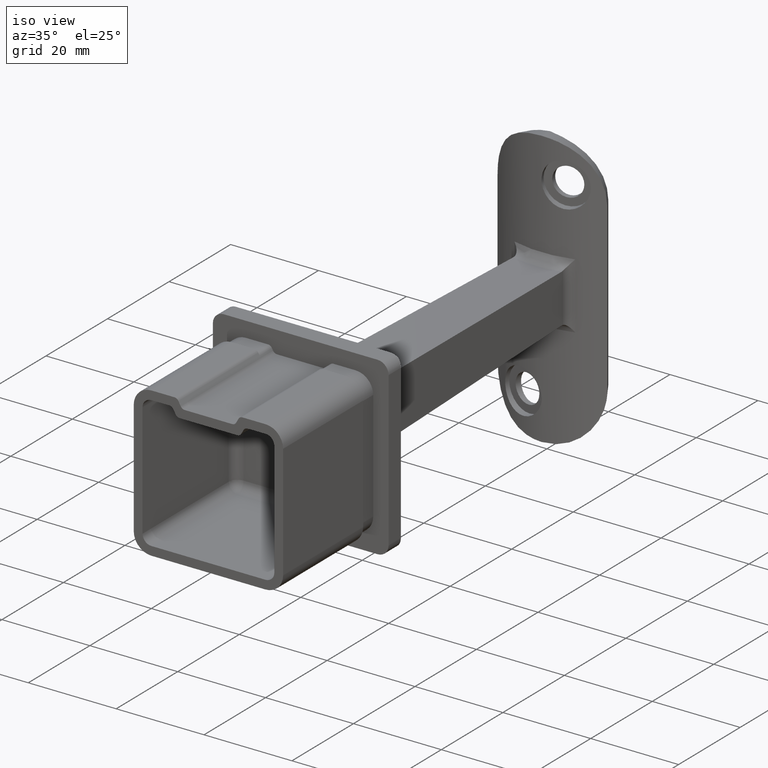
[diagram: clean part render]
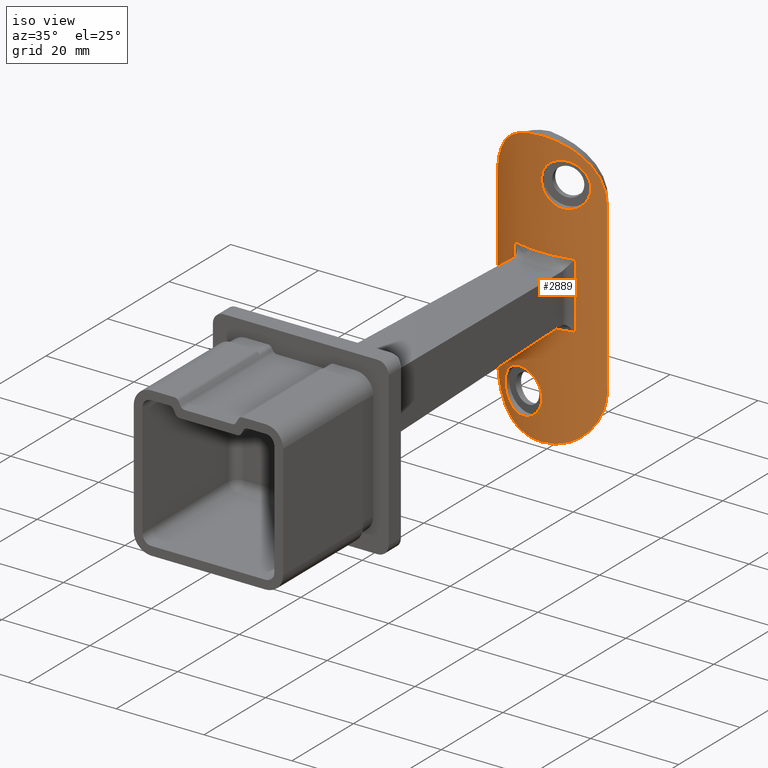
[diagram: same view with one face highlighted and labeled with its STEP entity id]
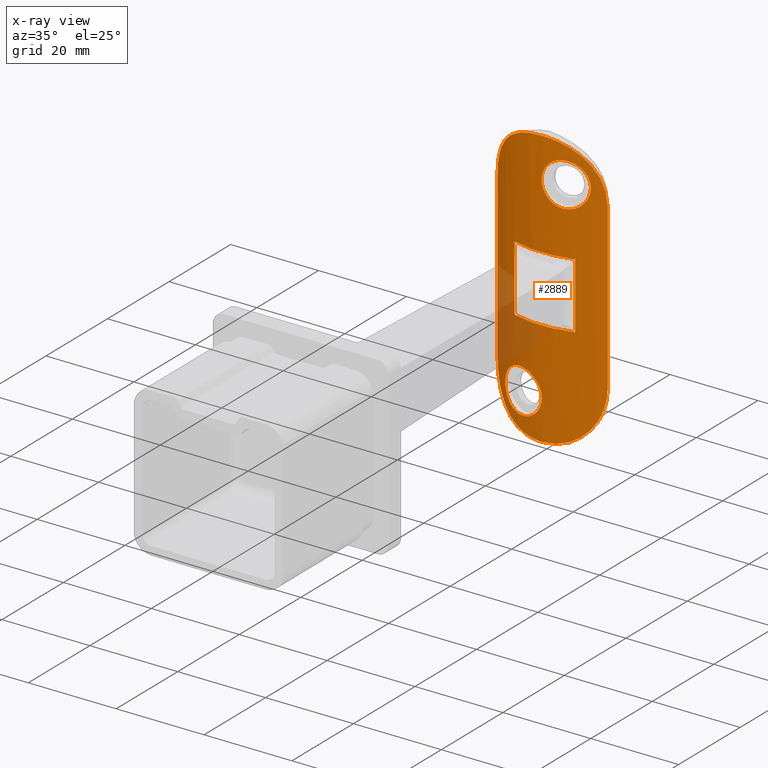
[diagram: x-ray of the same camera — body ghosted, the highlighted face saturated]
A machine part, iso view. The second image highlights one B-rep face of the part: STEP entity #2889.
The next image is the same camera in x-ray: the body ghosted, the highlighted face saturated — about 10% of this face is hidden behind the body in this view.
In plain terms, the highlighted cylindrical surface (partial cylindrical patch) has radius 23.9 mm, axis along (-0, -0, -1).
Its self-contained STEP definition (entity closure, byte-faithful):
#45 = CARTESIAN_POINT ( 'NONE',  ( 10.08867188535812964, 80.53192774363735396, 26.81347648107467307 ) ) ;
#97 = CARTESIAN_POINT ( 'NONE',  ( 12.11901948671362028, 81.60011137486631583, 22.33140305776570145 ) ) ;
#157 = CARTESIAN_POINT ( 'NONE',  ( 1.801515202842875839E-14, 78.30000000000001137, 31.50000000000000000 ) ) ;
#196 = VERTEX_POINT ( 'NONE', #13093 ) ;
#235 = EDGE_CURVE ( 'NONE', #13995, #7014, #11549, .T. ) ;
#263 = CARTESIAN_POINT ( 'NONE',  ( 12.20891205128505419, 81.65347634598812476, -21.92654828318316618 ) ) ;
#363 = CARTESIAN_POINT ( 'NONE',  ( 11.76970929267261035, 81.39827771256710776, -23.54502373047130348 ) ) ;
#422 = CARTESIAN_POINT ( 'NONE',  ( -9.127506563823764907, 80.11080787763683020, -19.98808559737458879 ) ) ;
#474 = CARTESIAN_POINT ( 'NONE',  ( -2.780473052627291164, 78.46035474060471415, -26.99400035388134000 ) ) ;
#533 = CARTESIAN_POINT ( 'NONE',  ( -9.600187830127641320, 80.31277267089632232, -23.79830294053726902 ) ) ;
#588 = CARTESIAN_POINT ( 'NONE',  ( -1.016315291976405355, 78.32089332832218531, -25.55653990918965235 ) ) ;
#644 = CARTESIAN_POINT ( 'NONE',  ( -0.6443453516928773217, 78.30796259675987869, -25.00945724881789189 ) ) ;
#693 = CARTESIAN_POINT ( 'NONE',  ( -3.336273381304646346, 78.53044230512335844, 31.14985781734947068 ) ) ;
#698 = CARTESIAN_POINT ( 'NONE',  ( 7.115695093291108719, 79.38183463164430975, 26.99400035388134711 ) ) ;
#751 = CARTESIAN_POINT ( 'NONE',  ( -1.689374649983637289, 78.34534707229671824, 31.43731789905272223 ) ) ;
#755 = CARTESIAN_POINT ( 'NONE',  ( 0.7350212690320919728, 78.31112669137017690, 25.14250287084909274 ) ) ;
#774 = VERTEX_POINT ( 'NONE', #10666 ) ;
#814 = CARTESIAN_POINT ( 'NONE',  ( 0.2307190772066439743, 78.30077190673048904, 20.88490751150437674 ) ) ;
#864 = CARTESIAN_POINT ( 'NONE',  ( 4.320354183384964131, 78.69155504846200699, 27.46673691025675268 ) ) ;
#904 = ORIENTED_EDGE ( 'NONE', *, *, #5627, .T. ) ;
#910 = CARTESIAN_POINT ( 'NONE',  ( -12.42679954048867685, 81.78399343299371083, 20.68969287840722515 ) ) ;
#1073 = CARTESIAN_POINT ( 'NONE',  ( 9.273386846155728946, 80.17205029477867129, 24.72218966816179275 ) ) ;
#1106 = B_SPLINE_CURVE_WITH_KNOTS ( 'NONE', 3,
 ( #2479, #12498, #16256, #13632, #2310, #9931, #2367, #13791, #6202, #15331, #8830, #3898, #12761, #5012, #10096, #14061, #5175, #7566, #7716, #2530, #11452, #12652, #10144, #6528 ),
 .UNSPECIFIED., .F., .F.,
 ( 4, 2, 2, 2, 2, 2, 2, 2, 2, 2, 2, 4 ),
 ( 0.000000000000000000, 0.002519114623883647684, 0.003778671935825471308, 0.005038229247767295367, 0.007557343871650942617, 0.008816901183592771446, 0.01007645849553460114, 0.01259557311941824145, 0.01511468774330187829, 0.01637424505524370452, 0.01763380236718552554, 0.02015291699106916759 ),
 .UNSPECIFIED. ) ;
#1130 = CARTESIAN_POINT ( 'NONE',  ( 8.588082210761074364, 79.89509303026953546, 25.80842519166886007 ) ) ;
#1295 = CARTESIAN_POINT ( 'NONE',  ( -0.6431187095368751105, 78.30794422712858704, -19.99299302735895623 ) ) ;
#1359 = B_SPLINE_CURVE_WITH_KNOTS ( 'NONE', 3,
 ( #16053, #7123, #751, #3374, #693, #2005, #3261, #14649, #12139, #14701, #9510, #4541, #5825, #5885, #15892, #4639, #13537, #8370, #5943, #10811, #8482, #9730, #3210, #910, #2173, #11187 ),
 .UNSPECIFIED., .F., .F.,
 ( 4, 2, 2, 2, 2, 2, 2, 2, 2, 2, 2, 2, 4 ),
 ( 3.081487911019577365E-33, 0.002520402078899247958, 0.003780603118348871937, 0.005040804157798496783, 0.007561206236697756884, 0.008821407276147389537, 0.01008160831559702306, 0.01134180935504665484, 0.01260201039449629010, 0.01512241247339555540, 0.01638261351284519066, 0.01764281455229482418, 0.02016321663119407734 ),
 .UNSPECIFIED. ) ;
#1395 = VECTOR ( 'NONE', #6594, 1000.000000000000000 ) ;
#1672 = CARTESIAN_POINT ( 'NONE',  ( 7.811028814570932788, 79.60992761471548818, -29.12473873559212834 ) ) ;
#1682 = CARTESIAN_POINT ( 'NONE',  ( -9.045004794819881511, 80.07746821714614782, -25.14250287084909274 ) ) ;
#1741 = CARTESIAN_POINT ( 'NONE',  ( -2.084192267671500787, 78.39065452399388789, -26.56809705087443874 ) ) ;
#1800 = CARTESIAN_POINT ( 'NONE',  ( -9.719051252733574842, 80.36529439368780459, -21.83926953236254320 ) ) ;
#1851 = CARTESIAN_POINT ( 'NONE',  ( 0.03160559237217525769, 78.30002089778047036, -22.50000000000000355 ) ) ;
#1899 = CARTESIAN_POINT ( 'NONE',  ( 0.6485267091332547196, 78.30867131525549496, 25.00051207834199829 ) ) ;
#1912 = CARTESIAN_POINT ( 'NONE',  ( -0.4867718186567255856, 78.30461448954385162, -20.27980288879009052 ) ) ;
#1917 = VERTEX_POINT ( 'NONE', #14085 ) ;
#1958 = CARTESIAN_POINT ( 'NONE',  ( 5.288698808989150457, 78.89016029310374734, 27.50022033124597698 ) ) ;
#2005 = CARTESIAN_POINT ( 'NONE',  ( -4.147560489722063259, 78.65904794767226349, 30.93923599940400493 ) ) ;
#2009 = CARTESIAN_POINT ( 'NONE',  ( 0.1337264217455732263, 78.30028361231644851, 21.19654959334430799 ) ) ;
#2068 = CARTESIAN_POINT ( 'NONE',  ( 9.130256385414808662, 80.11194102993324861, 19.99299302735895978 ) ) ;
#2121 = CARTESIAN_POINT ( 'NONE',  ( 0.4914317832794057317, 78.30492377042212127, 24.71141185185758005 ) ) ;
#2173 = CARTESIAN_POINT ( 'NONE',  ( -12.49999999999999822, 81.82943299758201761, 19.85176367316413248 ) ) ;
#2257 = CARTESIAN_POINT ( 'NONE',  ( -0.001748189622244579250, 78.29991121641461405, -21.84311018396013182 ) ) ;
#2302 = CARTESIAN_POINT ( 'NONE',  ( -2.379463125981270633, 77.94725717978042212, -7.542673587515561273 ) ) ;
#2310 = CARTESIAN_POINT ( 'NONE',  ( -12.11901948671362561, 81.60011137486631583, -22.33140305776571566 ) ) ;
#2316 = EDGE_CURVE ( 'NONE', #196, #7469, #1359, .T. ) ;
#2367 = CARTESIAN_POINT ( 'NONE',  ( -11.77122596088925199, 81.39913586908090792, -23.54059027737377363 ) ) ;
#2373 = B_SPLINE_CURVE_WITH_KNOTS ( 'NONE', 3,
 ( #16295, #12325, #3883, #6404, #97, #2568, #12747, #7653, #3773, #13939, #45, #2730, #8923, #8868, #6451, #15315, #5216, #7755, #11540, #11493, #12693, #7701, #7604, #157 ),
 .UNSPECIFIED., .F., .F.,
 ( 4, 2, 2, 2, 2, 2, 2, 2, 2, 2, 2, 4 ),
 ( 0.000000000000000000, 0.002519114623883630770, 0.003778671935825445721, 0.005038229247767261540, 0.007557343871650899249, 0.008816901183592722874, 0.01007645849553454910, 0.01259557311941819635, 0.01511468774330184707, 0.01637424505524366983, 0.01763380236718549432, 0.02015291699106914330 ),
 .UNSPECIFIED. ) ;
#2479 = CARTESIAN_POINT ( 'NONE',  ( -12.49999999999999112, 81.82943299758201761, -19.00000000000000355 ) ) ;
#2530 = CARTESIAN_POINT ( 'NONE',  ( -3.346186589489720919, 78.53181852281925046, -31.14766439404766274 ) ) ;
#2568 = CARTESIAN_POINT ( 'NONE',  ( 11.89999009249916107, 81.47281301078993465, 23.14010211780841786 ) ) ;
#2710 = DIRECTION ( 'NONE',  ( 0.000000000000000000, 0.000000000000000000, 1.000000000000000000 ) ) ;
#2730 = CARTESIAN_POINT ( 'NONE',  ( 9.584007642454674070, 80.30403111925078008, 27.45448678469192316 ) ) ;
#2731 = CARTESIAN_POINT ( 'NONE',  ( 10.97345080794629268, 80.96254934992319363, -25.44217904814953357 ) ) ;
#2783 = CARTESIAN_POINT ( 'NONE',  ( 8.744562075133805124, 79.95508053998274534, -28.33922657631659092 ) ) ;
#2792 = VERTEX_POINT ( 'NONE', #11215 ) ;
#2889 = ADVANCED_FACE ( 'NONE', ( #4724, #11484, #13478, #14060 ), #15066, .T. ) ;
#2946 = CARTESIAN_POINT ( 'NONE',  ( -6.540207807851578181, 79.21025527644513886, -27.24256000492122354 ) ) ;
#2998 = CARTESIAN_POINT ( 'NONE',  ( -4.646211916713988366, 78.75368460755541378, -17.50019634967356197 ) ) ;
#3051 = CARTESIAN_POINT ( 'NONE',  ( -1.226619491483846192, 78.33036582579794072, -25.80842519166886362 ) ) ;
#3110 = CARTESIAN_POINT ( 'NONE',  ( -5.286121852444319202, 78.88961805507872782, -17.49980543568915436 ) ) ;
#3161 = CARTESIAN_POINT ( 'NONE',  ( 2.485768645124741383, 78.42806023462591725, 26.83598321995807368 ) ) ;
#3210 = CARTESIAN_POINT ( 'NONE',  ( -12.20891205128505241, 81.65347634598812476, 21.92654828318317684 ) ) ;
#3214 = CARTESIAN_POINT ( 'NONE',  ( 8.154535004959807765, 79.73296610532284490, 18.73416644500701267 ) ) ;
#3261 = CARTESIAN_POINT ( 'NONE',  ( -4.548975921183288307, 78.73355696909696633, 30.81386667980315153 ) ) ;
#3265 = CARTESIAN_POINT ( 'NONE',  ( 1.691135978310251753, 78.35874976783708235, 18.73170185551622779 ) ) ;
#3322 = CARTESIAN_POINT ( 'NONE',  ( 0.0005771714339043895444, 78.29990949396909627, 23.15017998427636670 ) ) ;
#3350 = CARTESIAN_POINT ( 'NONE',  ( 0.03160559237217526463, 78.30002089778045615, -22.16869266728089372 ) ) ;
#3374 = CARTESIAN_POINT ( 'NONE',  ( -2.927063304914161002, 78.47629005274845326, 31.23528233315706970 ) ) ;
#3378 = CARTESIAN_POINT ( 'NONE',  ( 2.352842707652277543, 78.41570574819786543, 18.25290835144793533 ) ) ;
#3431 = CARTESIAN_POINT ( 'NONE',  ( 8.784057468769093546, 79.97197789736037521, 25.55653990918964524 ) ) ;
#3487 = CARTESIAN_POINT ( 'NONE',  ( 8.261496318098474845, 79.77298088615374638, 26.15278266463082701 ) ) ;
#3611 = CARTESIAN_POINT ( 'NONE',  ( 6.619561220086336491E-15, 78.30000000000001137, -31.50000000000000000 ) ) ;
#3709 = VERTEX_POINT ( 'NONE', #14553 ) ;
#3757 = CARTESIAN_POINT ( 'NONE',  ( 12.49999999999999645, 81.82943299758201761, 31.50000000000000000 ) ) ;
#3773 = CARTESIAN_POINT ( 'NONE',  ( 10.97563549100983415, 80.96374432536038057, 25.43748840281081769 ) ) ;
#3876 = CARTESIAN_POINT ( 'NONE',  ( 0.000000000000000000, 102.2000000000000028, 31.50000000000000000 ) ) ;
#3880 = LINE ( 'NONE', #9007, #13220 ) ;
#3883 = CARTESIAN_POINT ( 'NONE',  ( 12.42680511908452168, 81.78400078732633460, 20.68884113789401269 ) ) ;
#3898 = CARTESIAN_POINT ( 'NONE',  ( -9.584007642454674070, 80.30403111925078008, -27.45448678469193737 ) ) ;
#4213 = CARTESIAN_POINT ( 'NONE',  ( 11.33339039638915580, 81.15540235706410499, -24.70683279222540918 ) ) ;
#4219 = CARTESIAN_POINT ( 'NONE',  ( -12.49999999999999112, 81.82943299758201761, -19.00000000000000355 ) ) ;
#4225 = CARTESIAN_POINT ( 'NONE',  ( -3.381346327244114658, 78.53846403012798305, -27.24427438281317748 ) ) ;
#4274 = ORIENTED_EDGE ( 'NONE', *, *, #10358, .T. ) ;
#4285 = CARTESIAN_POINT ( 'NONE',  ( -6.235061782998410074, 79.12541552115021659, -27.33868766164697561 ) ) ;
#4339 = CARTESIAN_POINT ( 'NONE',  ( -0.4879138866757205539, 78.30464036986674614, -24.72218966816181407 ) ) ;
#4390 = CARTESIAN_POINT ( 'NONE',  ( -9.335446488831486533, 80.19855739574065012, -24.56385518209674856 ) ) ;
#4432 = CARTESIAN_POINT ( 'NONE',  ( 0.4863052359995659324, 78.30460626053323381, 20.28080602554793188 ) ) ;
#4441 = CARTESIAN_POINT ( 'NONE',  ( -9.749995407873269571, 80.37919365455736909, -22.82473411109441130 ) ) ;
#4467 = EDGE_LOOP ( 'NONE', ( #10384 ) ) ;
#4493 = CARTESIAN_POINT ( 'NONE',  ( 6.234683881911593062, 79.12526997235599424, 17.66099280225438051 ) ) ;
#4541 = CARTESIAN_POINT ( 'NONE',  ( -8.444779438827159979, 79.83911357427858491, 28.61155486257025160 ) ) ;
#4545 = CARTESIAN_POINT ( 'NONE',  ( 8.788716178499617726, 79.97383526871233528, 19.45019540014639503 ) ) ;
#4593 = CARTESIAN_POINT ( 'NONE',  ( 2.930288528409847437, 78.47982823362046645, 17.94359031922546421 ) ) ;
#4626 = EDGE_CURVE ( 'NONE', #774, #774, #5285, .T. ) ;
#4639 = CARTESIAN_POINT ( 'NONE',  ( -10.08241091771330034, 80.52902381056036063, 26.82195185610113697 ) ) ;
#4643 = CARTESIAN_POINT ( 'NONE',  ( 6.535000132432347897, 79.20879383965632314, 27.24427438281317748 ) ) ;
#4724 = FACE_BOUND ( 'NONE', #12589, .T. ) ;
#4741 = CARTESIAN_POINT ( 'NONE',  ( -1.688627533222234689, 78.35859504505381778, -18.73416644500700912 ) ) ;
#4772 = EDGE_CURVE ( 'NONE', #7469, #15385, #15673, .T. ) ;
#4895 = CARTESIAN_POINT ( 'NONE',  ( 2.379463125981258642, 77.94725717978042212, 7.542673587515561273 ) ) ;
#4923 = DIRECTION ( 'NONE',  ( -0.000000000000000000, -0.000000000000000000, -1.000000000000000000 ) ) ;
#5012 = CARTESIAN_POINT ( 'NONE',  ( -8.467533028471118328, 79.84190151860740059, -28.62121926088211410 ) ) ;
#5045 = ORIENTED_EDGE ( 'NONE', *, *, #9206, .T. ) ;
#5175 = CARTESIAN_POINT ( 'NONE',  ( -5.717659237306463638, 78.98052635819693990, -30.38166908416159018 ) ) ;
#5216 = CARTESIAN_POINT ( 'NONE',  ( 5.717659237306474296, 78.98052635819691147, 30.38166908416157241 ) ) ;
#5285 = B_SPLINE_CURVE_WITH_KNOTS ( 'NONE', 3,
 ( #7330, #3350, #2257, #13786, #11607, #1912, #1295, #13356, #13649, #4741, #14389, #14587, #15660, #6743, #15838, #15603, #2998, #3110, #8041, #12047, #13217, #13105, #11931, #8147, #5615, #6850, #13160, #7983, #10708, #422, #5503, #5562, #11883, #1800, #8211, #4441, #14375, #533, #9360, #4390, #14428, #9254, #1682, #15716, #5673, #13321, #11980, #9305, #10546, #2946, #4285, #6795, #11829, #10767, #14481, #5731, #4225, #474, #8103, #1741, #10597, #10651, #6969, #3051, #588, #644, #4339, #6912, #13270, #15777, #9416, #1851 ),
 .UNSPECIFIED., .T., .F.,
 ( 4, 2, 2, 2, 2, 2, 2, 2, 2, 2, 2, 2, 2, 2, 2, 2, 2, 2, 2, 2, 2, 2, 2, 2, 2, 2, 2, 2, 2, 2, 2, 2, 2, 2, 2, 4 ),
 ( 0.000000000000000000, 0.0009795963889854752363, 0.001959192777970950473, 0.002938789166956425492, 0.003918385555941900945, 0.004897981944927376832, 0.005877578333912850984, 0.006857174722898326871, 0.007836771111883800156, 0.008816367500869273441, 0.009795963889854748460, 0.01028576208434749117, 0.01077556027884023389, 0.01175515666782571064, 0.01273475305681118566, 0.01371434944579666415, 0.01469394583478214091, 0.01567354222376761766, 0.01665313861275309615, 0.01763273500173857464, 0.01812253319623130868, 0.01861233139072404272, 0.01959192777970951080, 0.02057152416869497541, 0.02155112055768044002, 0.02253071694666590463, 0.02351031333565136577, 0.02448990972463683038, 0.02546950611362229500, 0.02644910250260775961, 0.02693890069710049712, 0.02742869889159323116, 0.02840829528057869924, 0.02938789166956416732, 0.03036748805854963540, 0.03134708444753510348 ),
 .UNSPECIFIED. ) ;
#5330 = CARTESIAN_POINT ( 'NONE',  ( 12.49999999999999645, 81.82943299758201761, 19.00000000000000000 ) ) ;
#5375 = CARTESIAN_POINT ( 'NONE',  ( 6.444307657597536654, 79.17391957231579624, -30.02414997491111848 ) ) ;
#5431 = CARTESIAN_POINT ( 'NONE',  ( 4.548975921183309623, 78.73355696909698054, -30.81386667980315863 ) ) ;
#5503 = CARTESIAN_POINT ( 'NONE',  ( -9.274870295189666436, 80.17267343152791170, -20.28080602554793543 ) ) ;
#5562 = CARTESIAN_POINT ( 'NONE',  ( -9.509919441785346095, 80.27312683127250637, -20.88490751150436964 ) ) ;
#5615 = CARTESIAN_POINT ( 'NONE',  ( -7.524515233781471579, 79.51497867843514200, -18.25290835144793178 ) ) ;
#5626 = CARTESIAN_POINT ( 'NONE',  ( 12.49999999999999645, 81.82943299758201761, -19.00000000000000355 ) ) ;
#5627 = EDGE_CURVE ( 'NONE', #1917, #2792, #14601, .T. ) ;
#5673 = CARTESIAN_POINT ( 'NONE',  ( -8.593721063470061594, 79.89726100378419460, -25.80172898050414076 ) ) ;
#5723 = CARTESIAN_POINT ( 'NONE',  ( 1.011835418221000538, 78.32071429097561577, 25.55057141205664806 ) ) ;
#5731 = CARTESIAN_POINT ( 'NONE',  ( -3.697407897515077035, 78.58555307202416884, -27.34093672677460773 ) ) ;
#5776 = CARTESIAN_POINT ( 'NONE',  ( 7.916021302662435311, 79.64734555656551152, 18.52751742202610075 ) ) ;
#5825 = CARTESIAN_POINT ( 'NONE',  ( -8.744562075133796242, 79.95508053998274534, 28.33922657631659447 ) ) ;
#5829 = CARTESIAN_POINT ( 'NONE',  ( 9.509927491792565135, 80.27312893736085186, 20.88482742204008957 ) ) ;
#5885 = CARTESIAN_POINT ( 'NONE',  ( -9.311737534332745980, 80.18647343653857718, 27.76352351624347747 ) ) ;
#5890 = CARTESIAN_POINT ( 'NONE',  ( 2.492647277861828048, 78.42989800527564626, 18.16903446992373361 ) ) ;
#5943 = CARTESIAN_POINT ( 'NONE',  ( -11.33339039638915224, 81.15540235706409078, 24.70683279222541984 ) ) ;
#5945 = CARTESIAN_POINT ( 'NONE',  ( 1.946318463445786406, 78.37782688561142663, 18.52399631351668319 ) ) ;
#6136 = CARTESIAN_POINT ( 'NONE',  ( 6.933718302737430506, 79.32788705654232331, -7.513945775769857782 ) ) ;
#6202 = CARTESIAN_POINT ( 'NONE',  ( -10.97563549100983415, 80.96374432536038057, -25.43748840281083901 ) ) ;
#6371 = VERTEX_POINT ( 'NONE', #9670 ) ;
#6404 = CARTESIAN_POINT ( 'NONE',  ( 12.20953536127334083, 81.65384771808318476, 21.92341828278459204 ) ) ;
#6451 = CARTESIAN_POINT ( 'NONE',  ( 7.838716696203956502, 79.61034453836462887, 29.13305149999032295 ) ) ;
#6515 = CARTESIAN_POINT ( 'NONE',  ( 1.689374649983659937, 78.34534707229676087, -31.43731789905272578 ) ) ;
#6528 = CARTESIAN_POINT ( 'NONE',  ( 6.619561220086336491E-15, 78.30000000000001137, -31.50000000000000000 ) ) ;
#6569 = CARTESIAN_POINT ( 'NONE',  ( 12.49999999999999112, 81.82943299758201761, -19.85176367316412893 ) ) ;
#6594 = DIRECTION ( 'NONE',  ( -0.000000000000000000, -0.000000000000000000, -1.000000000000000000 ) ) ;
#6738 = CARTESIAN_POINT ( 'NONE',  ( -12.49999999999999112, 81.82943299758201761, 19.00000000000000000 ) ) ;
#6743 = CARTESIAN_POINT ( 'NONE',  ( -3.376417676101221232, 78.53777773068078716, -17.75750984274124633 ) ) ;
#6795 = CARTESIAN_POINT ( 'NONE',  ( -5.614906043881918940, 78.96672054083275327, -27.46673691025675623 ) ) ;
#6850 = CARTESIAN_POINT ( 'NONE',  ( -7.911300331909830952, 79.64572292199615333, -18.52399631351667963 ) ) ;
#6912 = CARTESIAN_POINT ( 'NONE',  ( -0.2328208462703216519, 78.30079360590075055, -24.12085505512530759 ) ) ;
#6952 = VECTOR ( 'NONE', #12680, 1000.000000000000000 ) ;
#6969 = CARTESIAN_POINT ( 'NONE',  ( -1.574638033832356676, 78.35164528087545932, -26.15278266463082346 ) ) ;
#7014 = VERTEX_POINT ( 'NONE', #5626 ) ;
#7017 = CARTESIAN_POINT ( 'NONE',  ( 5.291949823460056379, 78.89094043675331136, 17.50019634967356197 ) ) ;
#7074 = CARTESIAN_POINT ( 'NONE',  ( 2.780974876316808952, 78.46190365617488283, 18.01451377190371161 ) ) ;
#7123 = CARTESIAN_POINT ( 'NONE',  ( -0.8508854924574658085, 78.29999999999999716, 31.50000000000000000 ) ) ;
#7126 = CARTESIAN_POINT ( 'NONE',  ( 1.222313477964460438, 78.33012142277783596, 19.19608057380302313 ) ) ;
#7176 = CARTESIAN_POINT ( 'NONE',  ( 1.685379200757141982, 78.35836193967135443, 26.26306796244831077 ) ) ;
#7226 = CARTESIAN_POINT ( 'NONE',  ( 7.390541836389743047, 79.46973275602969977, 26.84066717814905090 ) ) ;
#7280 = CARTESIAN_POINT ( 'NONE',  ( 9.719439629364853062, 80.36546677573242903, 23.15821926706456679 ) ) ;
#7330 = CARTESIAN_POINT ( 'NONE',  ( 0.03160559237217525769, 78.30002089778047036, -22.50000000000000355 ) ) ;
#7420 = ORIENTED_EDGE ( 'NONE', *, *, #15161, .T. ) ;
#7436 = VERTEX_POINT ( 'NONE', #5330 ) ;
#7452 = EDGE_LOOP ( 'NONE', ( #7572 ) ) ;
#7469 = VERTEX_POINT ( 'NONE', #6738 ) ;
#7510 = CARTESIAN_POINT ( 'NONE',  ( -6.933718302737435835, 79.32788705654232331, -7.513945775769857782 ) ) ;
#7558 = CARTESIAN_POINT ( 'NONE',  ( -2.379463125981263971, 77.94725717978042212, 7.542673587515561273 ) ) ;
#7566 = CARTESIAN_POINT ( 'NONE',  ( -4.556911832542870577, 78.73511239341820556, -30.81120442593325492 ) ) ;
#7572 = ORIENTED_EDGE ( 'NONE', *, *, #12385, .T. ) ;
#7596 = DIRECTION ( 'NONE',  ( -1.000000000000000000, 0.000000000000000000, 0.000000000000000000 ) ) ;
#7604 = CARTESIAN_POINT ( 'NONE',  ( 0.8512134620258889894, 78.29999999999999716, 31.50000000000000000 ) ) ;
#7653 = CARTESIAN_POINT ( 'NONE',  ( 11.33490692902557484, 81.15621892882822408, 24.70357838193986311 ) ) ;
#7687 = ORIENTED_EDGE ( 'NONE', *, *, #11578, .F. ) ;
#7696 = DIRECTION ( 'NONE',  ( -0.000000000000000000, -0.000000000000000000, -1.000000000000000000 ) ) ;
#7701 = CARTESIAN_POINT ( 'NONE',  ( 1.691493122413926464, 78.34538282708085433, 31.43729596739237309 ) ) ;
#7716 = CARTESIAN_POINT ( 'NONE',  ( -4.160047560328647975, 78.66122808164696778, -30.93560338018276923 ) ) ;
#7755 = CARTESIAN_POINT ( 'NONE',  ( 4.556911832542887453, 78.73511239341820556, 30.81120442593324071 ) ) ;
#7757 = CARTESIAN_POINT ( 'NONE',  ( 12.11808895019411736, 81.59956064183808166, -22.33546752015569936 ) ) ;
#7895 = B_SPLINE_CURVE_WITH_KNOTS ( 'NONE', 3,
 ( #10814, #13366, #9627, #12144, #5829, #8322, #2068, #4545, #9513, #3214, #5776, #16109, #14704, #13432, #4493, #14651, #7017, #13542, #16057, #8375, #9567, #4593, #7074, #5890, #3378, #5945, #3265, #7126, #14753, #12251, #4432, #814, #2009, #8265, #14813, #10920, #3322, #12196, #15950, #13486, #2121, #1899, #755, #5723, #10872, #7176, #10759, #3161, #14592, #8433, #13315, #864, #15894, #1958, #9681, #10977, #4643, #698, #7226, #8485, #9465, #12039, #3487, #1130, #3431, #12306, #1073, #9904, #16224, #7280, #11095, #16160 ),
 .UNSPECIFIED., .T., .F.,
 ( 4, 2, 2, 2, 2, 2, 2, 2, 2, 2, 2, 2, 2, 2, 2, 2, 2, 2, 2, 2, 2, 2, 2, 2, 2, 2, 2, 2, 2, 2, 2, 2, 2, 2, 2, 4 ),
 ( 0.000000000000000000, 0.0009795963889854750195, 0.001959192777970950039, 0.002938789166956425059, 0.003918385555941900078, 0.004897981944927375098, 0.005877578333912848382, 0.006857174722898321667, 0.007836771111883794952, 0.008816367500869268237, 0.009795963889854741521, 0.01028576208434747556, 0.01077556027884020960, 0.01175515666782567074, 0.01273475305681113015, 0.01371434944579659303, 0.01469394583478205243, 0.01567354222376751358, 0.01665313861275297819, 0.01763273500173843586, 0.01812253319623117337, 0.01861233139072390741, 0.01959192777970937896, 0.02057152416869485051, 0.02155112055768031859, 0.02253071694666579361, 0.02351031333565126516, 0.02448990972463673671, 0.02546950611362220479, 0.02644910250260767981, 0.02693890069710042079, 0.02742869889159316177, 0.02840829528057865067, 0.02938789166956413609, 0.03036748805854962846, 0.03134708444753511736 ),
 .UNSPECIFIED. ) ;
#7920 = CARTESIAN_POINT ( 'NONE',  ( 10.08241091771331455, 80.52902381056037484, -26.82195185610113697 ) ) ;
#7983 = CARTESIAN_POINT ( 'NONE',  ( -8.592115357516201257, 79.89662117048456480, -19.19608057380301958 ) ) ;
#8041 = CARTESIAN_POINT ( 'NONE',  ( -5.609776196574823182, 78.96546502709679771, -17.53248664024603443 ) ) ;
#8103 = CARTESIAN_POINT ( 'NONE',  ( -2.493636670876509864, 78.42886343122407311, -26.84066717814905445 ) ) ;
#8147 = CARTESIAN_POINT ( 'NONE',  ( -7.391024892707349636, 79.47108030884858465, -18.16903446992373361 ) ) ;
#8177 =( BOUNDED_CURVE ( )  B_SPLINE_CURVE ( 3, ( #6136, #10036, #2302, #7510 ),
 .UNSPECIFIED., .F., .F. ) 
 B_SPLINE_CURVE_WITH_KNOTS ( ( 4, 4 ),
 ( 5.988839623664865996, 6.577530990694307356 ),
 .UNSPECIFIED. ) 
 CURVE ( )  GEOMETRIC_REPRESENTATION_ITEM ( )  RATIONAL_B_SPLINE_CURVE ( ( 1.000000000000000000, 0.9713281155776197773, 0.9713281155776197773, 1.000000000000000000 ) ) 
 REPRESENTATION_ITEM ( '' )  );
#8211 = CARTESIAN_POINT ( 'NONE',  ( -9.749744633654028547, 80.37908160508828814, -22.17115634621318776 ) ) ;
#8265 = CARTESIAN_POINT ( 'NONE',  ( 0.002179736329043761248, 78.29990959397153460, 21.83926953236254320 ) ) ;
#8322 = CARTESIAN_POINT ( 'NONE',  ( 9.274440703682437004, 80.17249117283947157, 20.27980288879008341 ) ) ;
#8370 = CARTESIAN_POINT ( 'NONE',  ( -10.97345080794628203, 80.96254934992317942, 25.44217904814954068 ) ) ;
#8375 = CARTESIAN_POINT ( 'NONE',  ( 3.692145320226120297, 78.58472385685375627, 17.66045373648260508 ) ) ;
#8433 = CARTESIAN_POINT ( 'NONE',  ( 3.375994459126472336, 78.53768096664975928, 27.24256000492123064 ) ) ;
#8482 = CARTESIAN_POINT ( 'NONE',  ( -11.89811867380433874, 81.47173539395565456, 23.14637495243619369 ) ) ;
#8485 = CARTESIAN_POINT ( 'NONE',  ( 7.780128873757247376, 79.60136322447385737, 26.56809705087442808 ) ) ;
#8830 = CARTESIAN_POINT ( 'NONE',  ( -10.08867188535812964, 80.53192774363735396, -26.81347648107468373 ) ) ;
#8868 = CARTESIAN_POINT ( 'NONE',  ( 8.467533028471128986, 79.84190151860741480, 28.62121926088209634 ) ) ;
#8923 = CARTESIAN_POINT ( 'NONE',  ( 9.316456717463761805, 80.18847903813551170, 27.75832848789907459 ) ) ;
#8929 = EDGE_CURVE ( 'NONE', #14623, #1917, #3880, .T. ) ;
#9007 = CARTESIAN_POINT ( 'NONE',  ( -6.933718302737435835, 79.32788705654232331, 31.50000000000000000 ) ) ;
#9154 = CARTESIAN_POINT ( 'NONE',  ( 6.933718302737433170, 79.32788705654232331, 31.50000000000000000 ) ) ;
#9185 = CARTESIAN_POINT ( 'NONE',  ( 12.49999999999999645, 81.82943299758201761, -19.00000000000000355 ) ) ;
#9206 = EDGE_CURVE ( 'NONE', #15385, #13995, #1106, .T. ) ;
#9254 = CARTESIAN_POINT ( 'NONE',  ( -9.125020198564643081, 80.11040562638730478, -25.00051207834200184 ) ) ;
#9305 = CARTESIAN_POINT ( 'NONE',  ( -7.398056325063953942, 79.47219921380775531, -26.83598321995807368 ) ) ;
#9360 = CARTESIAN_POINT ( 'NONE',  ( -9.510735381743552708, 80.27348491538468522, -24.11228499716552776 ) ) ;
#9416 = CARTESIAN_POINT ( 'NONE',  ( 0.03160559237217525075, 78.30002089778048457, -22.83130733271910628 ) ) ;
#9465 = CARTESIAN_POINT ( 'NONE',  ( 7.906659837075930675, 79.64537707930486476, 26.46959917486580949 ) ) ;
#9510 = CARTESIAN_POINT ( 'NONE',  ( -7.811028814570921242, 79.60992761471547396, 29.12473873559212834 ) ) ;
#9513 = CARTESIAN_POINT ( 'NONE',  ( 8.590058145852616178, 79.89585342985395755, 19.19392981547819232 ) ) ;
#9567 = CARTESIAN_POINT ( 'NONE',  ( 3.382830474563728096, 78.53865988737159398, 17.75512468499805152 ) ) ;
#9627 = CARTESIAN_POINT ( 'NONE',  ( 9.719444830360286502, 80.36547140172211812, 21.84311018396012116 ) ) ;
#9670 = CARTESIAN_POINT ( 'NONE',  ( 6.933718302737430506, 79.32788705654232331, -7.513945775769857782 ) ) ;
#9681 = CARTESIAN_POINT ( 'NONE',  ( 5.605430177374146616, 78.96442207731047347, 27.46806888061077601 ) ) ;
#9729 = ORIENTED_EDGE ( 'NONE', *, *, #8929, .T. ) ;
#9730 = CARTESIAN_POINT ( 'NONE',  ( -12.11808895019411381, 81.59956064183809588, 22.33546752015570291 ) ) ;
#9904 = CARTESIAN_POINT ( 'NONE',  ( 9.507990554356556601, 80.27229178795739983, 24.12085505512529338 ) ) ;
#9931 = CARTESIAN_POINT ( 'NONE',  ( -11.89999009249916462, 81.47281301078993465, -23.14010211780841786 ) ) ;
#10036 = CARTESIAN_POINT ( 'NONE',  ( 2.379463125981255978, 77.94725717978042212, -7.542673587515561273 ) ) ;
#10096 = CARTESIAN_POINT ( 'NONE',  ( -7.838716696203945844, 79.61034453836462887, -29.13305149999034072 ) ) ;
#10144 = CARTESIAN_POINT ( 'NONE',  ( -0.8512134620258926532, 78.29999999999999716, -31.50000000000000711 ) ) ;
#10301 = CARTESIAN_POINT ( 'NONE',  ( 3.336273381304665886, 78.53044230512337265, -31.14985781734947068 ) ) ;
#10358 = EDGE_CURVE ( 'NONE', #2792, #6371, #15685, .T. ) ;
#10384 = ORIENTED_EDGE ( 'NONE', *, *, #4626, .F. ) ;
#10538 = CARTESIAN_POINT ( 'NONE',  ( 7.476171599805720547, 79.49654809346723994, -29.36576672431655766 ) ) ;
#10546 = CARTESIAN_POINT ( 'NONE',  ( -7.123671238132988748, 79.38430389589001379, -26.99002051973204530 ) ) ;
#10597 = CARTESIAN_POINT ( 'NONE',  ( -1.950698433317799907, 78.37939840188263929, -26.46959917486578817 ) ) ;
#10651 = CARTESIAN_POINT ( 'NONE',  ( -1.696217942003501733, 78.35992597395714654, -26.26210009480956842 ) ) ;
#10666 = CARTESIAN_POINT ( 'NONE',  ( 0.03160559237217527156, 78.30002089778045615, -22.50000000000000000 ) ) ;
#10708 = CARTESIAN_POINT ( 'NONE',  ( -8.786687282343173422, 79.97303639059921920, -19.44751577621050131 ) ) ;
#10759 = CARTESIAN_POINT ( 'NONE',  ( 1.943443401421639738, 78.37759051415811484, 26.47383313200598920 ) ) ;
#10767 = CARTESIAN_POINT ( 'NONE',  ( -4.649499179225764500, 78.75429421758046544, -27.50022033124597343 ) ) ;
#10811 = CARTESIAN_POINT ( 'NONE',  ( -11.76970929267260857, 81.39827771256706512, 23.54502373047131769 ) ) ;
#10814 = CARTESIAN_POINT ( 'NONE',  ( 9.749870414965934984, 80.37913780595798130, 22.49999999999999645 ) ) ;
#10872 = CARTESIAN_POINT ( 'NONE',  ( 1.220586348935602583, 78.33005284013289327, 25.80172898050413721 ) ) ;
#10920 = CARTESIAN_POINT ( 'NONE',  ( -0.03174249474672573984, 78.30002107881918505, 22.82473411109440775 ) ) ;
#10977 = CARTESIAN_POINT ( 'NONE',  ( 6.227110681749437937, 79.12325799788800396, 27.34093672677462195 ) ) ;
#11095 = CARTESIAN_POINT ( 'NONE',  ( 9.749870414965934984, 80.37913780595796709, 22.83130733271910273 ) ) ;
#11129 = EDGE_CURVE ( 'NONE', #7436, #196, #2373, .T. ) ;
#11187 = CARTESIAN_POINT ( 'NONE',  ( -12.49999999999999112, 81.82943299758201761, 19.00000000000000000 ) ) ;
#11215 = CARTESIAN_POINT ( 'NONE',  ( 6.933718302737432282, 79.32788705654232331, 7.513945775769856006 ) ) ;
#11452 = CARTESIAN_POINT ( 'NONE',  ( -2.934047153181823298, 78.47712402204717819, -31.23397879930087839 ) ) ;
#11484 = FACE_BOUND ( 'NONE', #7452, .T. ) ;
#11493 = CARTESIAN_POINT ( 'NONE',  ( 3.346186589489740015, 78.53181852281926467, 31.14766439404764853 ) ) ;
#11540 = CARTESIAN_POINT ( 'NONE',  ( 4.160047560328665739, 78.66122808164696778, 30.93560338018275857 ) ) ;
#11543 = ORIENTED_EDGE ( 'NONE', *, *, #2316, .T. ) ;
#11549 = B_SPLINE_CURVE_WITH_KNOTS ( 'NONE', 3,
 ( #11819, #15371, #6515, #15481, #10301, #11716, #5431, #12981, #5375, #10538, #1672, #12921, #2783, #14265, #15592, #7920, #14317, #2731, #4213, #363, #11764, #7757, #263, #11656, #6569, #9185 ),
 .UNSPECIFIED., .F., .F.,
 ( 4, 2, 2, 2, 2, 2, 2, 2, 2, 2, 2, 2, 4 ),
 ( 1.693890343663725524E-17, 0.002520402078899266173, 0.003780603118348890151, 0.005040804157798514998, 0.007561206236697774231, 0.008821407276147401680, 0.01008160831559703520, 0.01134180935504666525, 0.01260201039449629530, 0.01512241247339556061, 0.01638261351284519066, 0.01764281455229482071, 0.02016321663119407387 ),
 .UNSPECIFIED. ) ;
#11578 = EDGE_CURVE ( 'NONE', #7436, #7014, #15949, .T. ) ;
#11607 = CARTESIAN_POINT ( 'NONE',  ( -0.2307108665358248156, 78.30077055650500029, -20.88482742204008602 ) ) ;
#11656 = CARTESIAN_POINT ( 'NONE',  ( 12.42679954048867685, 81.78399343299369662, -20.68969287840721449 ) ) ;
#11716 = CARTESIAN_POINT ( 'NONE',  ( 4.147560489722082799, 78.65904794767232033, -30.93923599940400493 ) ) ;
#11764 = CARTESIAN_POINT ( 'NONE',  ( 11.89811867380434229, 81.47173539395565456, -23.14637495243618659 ) ) ;
#11819 = CARTESIAN_POINT ( 'NONE',  ( 6.619561220086336491E-15, 78.30000000000001137, -31.50000000000000000 ) ) ;
#11829 = CARTESIAN_POINT ( 'NONE',  ( -5.295241822260680742, 78.89164578317073051, -27.49977741829791356 ) ) ;
#11883 = CARTESIAN_POINT ( 'NONE',  ( -9.598725248837316926, 80.31213121921381060, -21.19654959334430799 ) ) ;
#11931 = CARTESIAN_POINT ( 'NONE',  ( -7.114606653819605775, 79.38304552634475897, -18.01451377190370451 ) ) ;
#11980 = CARTESIAN_POINT ( 'NONE',  ( -7.914022972693890878, 79.64667637900492991, -26.47383313200597499 ) ) ;
#12039 = CARTESIAN_POINT ( 'NONE',  ( 8.147059483941735181, 79.73109467198966627, 26.26210009480957197 ) ) ;
#12047 = CARTESIAN_POINT ( 'NONE',  ( -6.232255557522035083, 79.12464095515618112, -17.66045373648260153 ) ) ;
#12139 = CARTESIAN_POINT ( 'NONE',  ( -6.444307657597518890, 79.17391957231579624, 30.02414997491112558 ) ) ;
#12144 = CARTESIAN_POINT ( 'NONE',  ( 9.600228290909841533, 80.31279223651755217, 21.20286708044788426 ) ) ;
#12196 = CARTESIAN_POINT ( 'NONE',  ( 0.1321293853473076152, 78.30027472218306173, 23.79830294053726547 ) ) ;
#12251 = CARTESIAN_POINT ( 'NONE',  ( 0.6460916911218375080, 78.30802749419841291, 19.98808559737458879 ) ) ;
#12306 = CARTESIAN_POINT ( 'NONE',  ( 9.129128320442866595, 80.11145889111369911, 25.00945724881788479 ) ) ;
#12325 = CARTESIAN_POINT ( 'NONE',  ( 12.49999999999999822, 81.82943299758204603, 19.85173716427796009 ) ) ;
#12385 = EDGE_CURVE ( 'NONE', #3709, #3709, #7895, .T. ) ;
#12498 = CARTESIAN_POINT ( 'NONE',  ( -12.49999999999999645, 81.82943299758203182, -19.85173716427796720 ) ) ;
#12589 = EDGE_LOOP ( 'NONE', ( #9729, #904, #4274, #7420 ) ) ;
#12618 = EDGE_LOOP ( 'NONE', ( #7687, #15364, #11543, #14190, #5045, #14717 ) ) ;
#12652 = CARTESIAN_POINT ( 'NONE',  ( -1.691493122413904038, 78.34538282708088275, -31.43729596739238374 ) ) ;
#12680 = DIRECTION ( 'NONE',  ( -0.000000000000000000, -0.000000000000000000, -1.000000000000000000 ) ) ;
#12693 = CARTESIAN_POINT ( 'NONE',  ( 2.934047153181845502, 78.47712402204719240, 31.23397879930086418 ) ) ;
#12747 = CARTESIAN_POINT ( 'NONE',  ( 11.77122596088925022, 81.39913586908092213, 23.54059027737376653 ) ) ;
#12761 = CARTESIAN_POINT ( 'NONE',  ( -9.316456717463756476, 80.18847903813551170, -27.75832848789909235 ) ) ;
#12921 = CARTESIAN_POINT ( 'NONE',  ( 8.444779438827170637, 79.83911357427858491, -28.61155486257024805 ) ) ;
#12981 = CARTESIAN_POINT ( 'NONE',  ( 5.712519860388226789, 78.97919814775627856, -30.38411241627951398 ) ) ;
#13093 = CARTESIAN_POINT ( 'NONE',  ( 1.801515202842875839E-14, 78.30000000000001137, 31.50000000000000000 ) ) ;
#13105 = CARTESIAN_POINT ( 'NONE',  ( -6.970911262727210733, 79.33868910903262872, -17.94359031922545711 ) ) ;
#13160 = CARTESIAN_POINT ( 'NONE',  ( -8.152180494918441767, 79.73208717508425991, -18.73170185551622069 ) ) ;
#13217 = CARTESIAN_POINT ( 'NONE',  ( -6.533564634072275723, 79.20836910705295963, -17.75512468499806573 ) ) ;
#13220 = VECTOR ( 'NONE', #2710, 1000.000000000000000 ) ;
#13270 = CARTESIAN_POINT ( 'NONE',  ( -0.1336304553485546109, 78.30028262234225167, -23.80341494038978567 ) ) ;
#13315 = CARTESIAN_POINT ( 'NONE',  ( 3.689266661316814133, 78.58429006336926648, 27.33868766164696495 ) ) ;
#13321 = CARTESIAN_POINT ( 'NONE',  ( -8.157597316828967493, 79.73407436880196997, -26.26306796244830721 ) ) ;
#13356 = CARTESIAN_POINT ( 'NONE',  ( -1.011303887874959173, 78.32069525352706307, -19.45019540014638437 ) ) ;
#13366 = CARTESIAN_POINT ( 'NONE',  ( 9.749870414965934984, 80.37913780595800972, 22.16869266728089016 ) ) ;
#13432 = CARTESIAN_POINT ( 'NONE',  ( 6.539781822429549862, 79.21017153693448165, 17.75750984274124278 ) ) ;
#13478 = FACE_OUTER_BOUND ( 'NONE', #12618, .T. ) ;
#13486 = CARTESIAN_POINT ( 'NONE',  ( 0.4204381727434025606, 78.30361388081341545, 24.56385518209675212 ) ) ;
#13537 = CARTESIAN_POINT ( 'NONE',  ( -10.31949662107365029, 80.64131328965360979, 26.48511180833637724 ) ) ;
#13542 = CARTESIAN_POINT ( 'NONE',  ( 4.652073894245869923, 78.75484700115015357, 17.49980543568915081 ) ) ;
#13632 = CARTESIAN_POINT ( 'NONE',  ( -12.20953536127334615, 81.65384771808319897, -21.92341828278459914 ) ) ;
#13649 = CARTESIAN_POINT ( 'NONE',  ( -1.224505102581998628, 78.33025680017824754, -19.19392981547819232 ) ) ;
#13786 = CARTESIAN_POINT ( 'NONE',  ( -0.1320844645284051655, 78.30027613938472086, -21.20286708044789137 ) ) ;
#13791 = CARTESIAN_POINT ( 'NONE',  ( -11.33490692902557839, 81.15621892882822408, -24.70357838193987376 ) ) ;
#13939 = CARTESIAN_POINT ( 'NONE',  ( 10.32564982028879719, 80.64427597675471304, 26.47589184400855444 ) ) ;
#13995 = VERTEX_POINT ( 'NONE', #3611 ) ;
#14060 = FACE_BOUND ( 'NONE', #4467, .T. ) ;
#14061 = CARTESIAN_POINT ( 'NONE',  ( -6.451894582088502084, 79.17585898192170646, -30.02067555515204589 ) ) ;
#14085 = CARTESIAN_POINT ( 'NONE',  ( -6.933718302737435835, 79.32788705654232331, 7.513945775769856006 ) ) ;
#14190 = ORIENTED_EDGE ( 'NONE', *, *, #4772, .T. ) ;
#14265 = CARTESIAN_POINT ( 'NONE',  ( 9.311737534332751309, 80.18647343653857718, -27.76352351624347037 ) ) ;
#14317 = CARTESIAN_POINT ( 'NONE',  ( 10.31949662107366095, 80.64131328965363821, -26.48511180833637724 ) ) ;
#14375 = CARTESIAN_POINT ( 'NONE',  ( -9.720515309288758843, 80.36594612419679606, -23.15017998427635959 ) ) ;
#14389 = CARTESIAN_POINT ( 'NONE',  ( -1.941345657121394064, 78.37738904425573594, -18.52751742202610430 ) ) ;
#14428 = CARTESIAN_POINT ( 'NONE',  ( -9.270057818302429808, 80.17087833661345542, -24.71141185185757294 ) ) ;
#14481 = CARTESIAN_POINT ( 'NONE',  ( -4.329945687527680498, 78.69330947968521173, -27.46806888061076890 ) ) ;
#14553 = CARTESIAN_POINT ( 'NONE',  ( 9.749870414965934984, 80.37913780595798130, 22.50000000000000000 ) ) ;
#14587 = CARTESIAN_POINT ( 'NONE',  ( -2.488944587704187583, 78.42836205583405729, -18.16194633351023668 ) ) ;
#14592 = CARTESIAN_POINT ( 'NONE',  ( 2.772182141487321783, 78.45936633536244642, 26.99002051973205596 ) ) ;
#14601 =( BOUNDED_CURVE ( )  B_SPLINE_CURVE ( 3, ( #16354, #7558, #4895, #16458 ),
 .UNSPECIFIED., .F., .F. ) 
 B_SPLINE_CURVE_WITH_KNOTS ( ( 4, 4 ),
 ( 2.847246970075072436, 3.435938337104513796 ),
 .UNSPECIFIED. ) 
 CURVE ( )  GEOMETRIC_REPRESENTATION_ITEM ( )  RATIONAL_B_SPLINE_CURVE ( ( 1.000000000000000000, 0.9713281155776197773, 0.9713281155776197773, 1.000000000000000000 ) ) 
 REPRESENTATION_ITEM ( '' )  );
#14623 = VERTEX_POINT ( 'NONE', #15991 ) ;
#14649 = CARTESIAN_POINT ( 'NONE',  ( -5.712519860388209025, 78.97919814775629277, 30.38411241627952819 ) ) ;
#14651 = CARTESIAN_POINT ( 'NONE',  ( 5.608466301691303002, 78.96512202100431921, 17.53217756836470897 ) ) ;
#14701 = CARTESIAN_POINT ( 'NONE',  ( -7.476171599805706336, 79.49654809346723994, 29.36576672431656476 ) ) ;
#14704 = CARTESIAN_POINT ( 'NONE',  ( 7.117824429874871406, 79.38251691286627931, 18.00719733433033554 ) ) ;
#14717 = ORIENTED_EDGE ( 'NONE', *, *, #235, .T. ) ;
#14753 = CARTESIAN_POINT ( 'NONE',  ( 1.013482309744674570, 78.32079066846745263, 19.44751577621051553 ) ) ;
#14813 = CARTESIAN_POINT ( 'NONE',  ( -0.03146782647295338908, 78.30002071559988508, 22.17115634621319487 ) ) ;
#15066 = CYLINDRICAL_SURFACE ( 'NONE', #16187, 23.89999999999999858 ) ;
#15149 = CARTESIAN_POINT ( 'NONE',  ( -12.49999999999999112, 81.82943299758201761, 31.50000000000000000 ) ) ;
#15161 = EDGE_CURVE ( 'NONE', #6371, #14623, #8177, .T. ) ;
#15315 = CARTESIAN_POINT ( 'NONE',  ( 6.451894582088517183, 79.17585898192169225, 30.02067555515202102 ) ) ;
#15331 = CARTESIAN_POINT ( 'NONE',  ( -10.32564982028879186, 80.64427597675469883, -26.47589184400856865 ) ) ;
#15364 = ORIENTED_EDGE ( 'NONE', *, *, #11129, .T. ) ;
#15371 = CARTESIAN_POINT ( 'NONE',  ( 0.8508854924574731360, 78.30000000000001137, -31.50000000000000000 ) ) ;
#15385 = VERTEX_POINT ( 'NONE', #4219 ) ;
#15481 = CARTESIAN_POINT ( 'NONE',  ( 2.927063304914181430, 78.47629005274846747, -31.23528233315706615 ) ) ;
#15592 = CARTESIAN_POINT ( 'NONE',  ( 9.579128479425980558, 80.30190609912511945, -27.46014958102869485 ) ) ;
#15603 = CARTESIAN_POINT ( 'NONE',  ( -4.326887357200496886, 78.69271400705470398, -17.53217756836470897 ) ) ;
#15660 = CARTESIAN_POINT ( 'NONE',  ( -2.778250298089528059, 78.46011195630183011, -18.00719733433033909 ) ) ;
#15673 = LINE ( 'NONE', #15149, #6952 ) ;
#15685 = LINE ( 'NONE', #9154, #1395 ) ;
#15716 = CARTESIAN_POINT ( 'NONE',  ( -8.788222858138469817, 79.97363646741840171, -25.55057141205665161 ) ) ;
#15721 = VECTOR ( 'NONE', #4923, 1000.000000000000000 ) ;
#15777 = CARTESIAN_POINT ( 'NONE',  ( -0.001754822527510617501, 78.29990910579817864, -23.15821926706456679 ) ) ;
#15838 = CARTESIAN_POINT ( 'NONE',  ( -3.689671091166070838, 78.58431080414889891, -17.66099280225438051 ) ) ;
#15892 = CARTESIAN_POINT ( 'NONE',  ( -9.579128479425973453, 80.30190609912511945, 27.46014958102870196 ) ) ;
#15894 = CARTESIAN_POINT ( 'NONE',  ( 4.642917635929086018, 78.75298999702992830, 27.49977741829789579 ) ) ;
#15949 = LINE ( 'NONE', #3757, #15721 ) ;
#15950 = CARTESIAN_POINT ( 'NONE',  ( 0.2298280330343977773, 78.30076716016512250, 24.11228499716551354 ) ) ;
#15991 = CARTESIAN_POINT ( 'NONE',  ( -6.933718302737435835, 79.32788705654232331, -7.513945775769857782 ) ) ;
#16053 = CARTESIAN_POINT ( 'NONE',  ( 1.801515202842875839E-14, 78.30000000000001137, 31.50000000000000000 ) ) ;
#16057 = CARTESIAN_POINT ( 'NONE',  ( 4.325551195533068771, 78.69249457646466794, 17.53248664024602732 ) ) ;
#16109 = CARTESIAN_POINT ( 'NONE',  ( 7.395032195401732622, 79.47118316897814339, 18.16194633351023313 ) ) ;
#16160 = CARTESIAN_POINT ( 'NONE',  ( 9.749870414965934984, 80.37913780595798130, 22.49999999999999645 ) ) ;
#16187 = AXIS2_PLACEMENT_3D ( 'NONE', #3876, #7696, #7596 ) ;
#16224 = CARTESIAN_POINT ( 'NONE',  ( 9.598813321162163348, 80.31216934787754269, 23.80341494038978567 ) ) ;
#16256 = CARTESIAN_POINT ( 'NONE',  ( -12.42680511908452168, 81.78400078732632039, -20.68884113789401269 ) ) ;
#16295 = CARTESIAN_POINT ( 'NONE',  ( 12.49999999999999645, 81.82943299758201761, 19.00000000000000000 ) ) ;
#16354 = CARTESIAN_POINT ( 'NONE',  ( -6.933718302737435835, 79.32788705654232331, 7.513945775769856006 ) ) ;
#16458 = CARTESIAN_POINT ( 'NONE',  ( 6.933718302737432282, 79.32788705654232331, 7.513945775769856006 ) ) ;